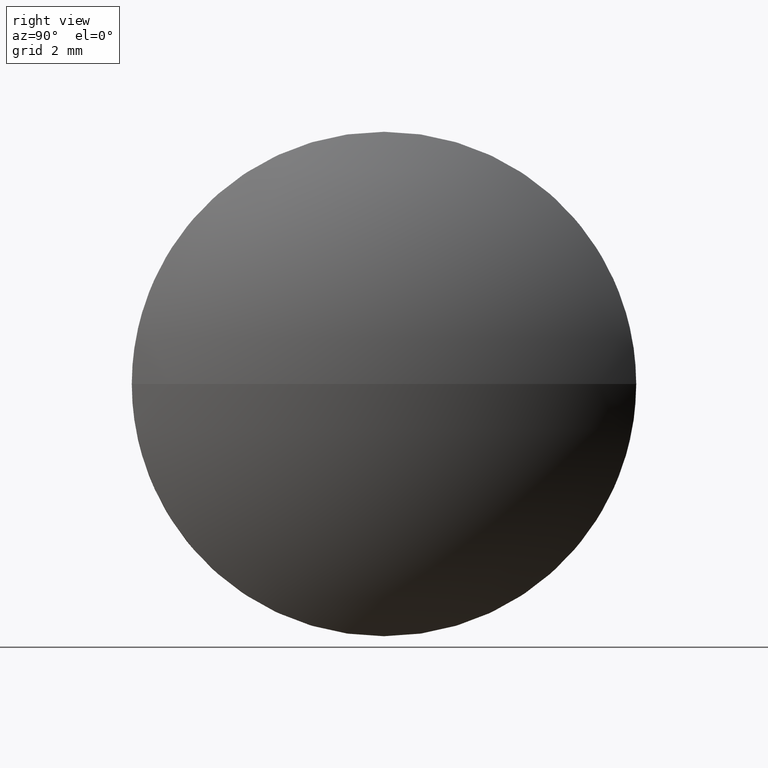
[diagram: clean part render]
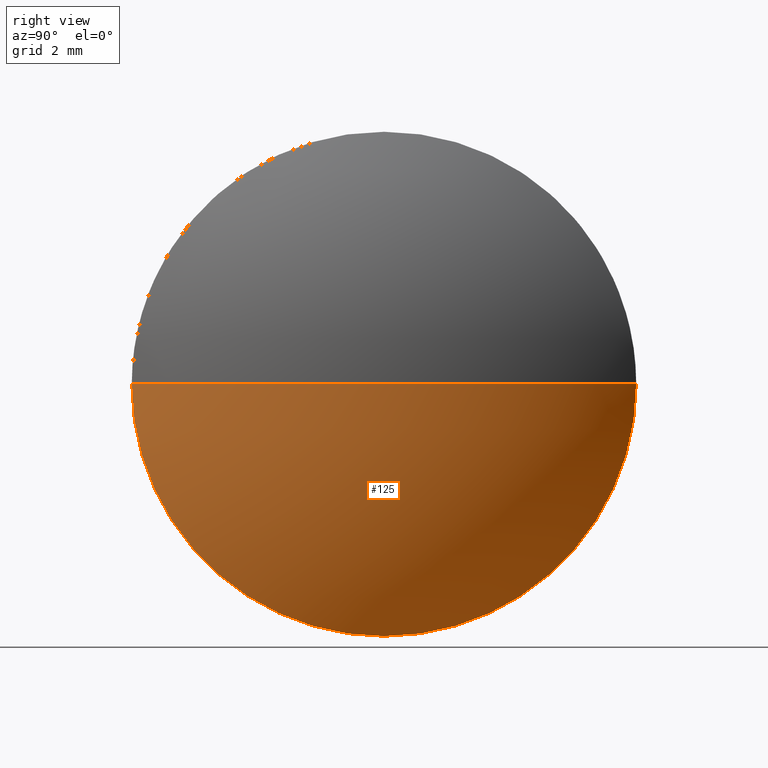
[diagram: same view with one face highlighted and labeled with its STEP entity id]
A machine part, right view. The second image highlights one B-rep face of the part: STEP entity #125.
In plain terms, the highlighted spherical surface has radius 8.2805 mm.
Its self-contained STEP definition (entity closure, byte-faithful):
#19 = SPHERICAL_SURFACE ( 'NONE', #164, 8.280476190476205600 ) ;
#21 = CARTESIAN_POINT ( 'NONE',  ( 526.2056482525305200, 17.05461516330817800, 0.0000000000000000000 ) ) ;
#22 = ORIENTED_EDGE ( 'NONE', *, *, #166, .F. ) ;
#25 = DIRECTION ( 'NONE',  ( 0.0000000000000000000, 0.0000000000000000000, 1.000000000000000000 ) ) ;
#31 = FACE_OUTER_BOUND ( 'NONE', #134, .T. ) ;
#35 = EDGE_CURVE ( 'NONE', #83, #120, #70, .T. ) ;
#40 = CARTESIAN_POINT ( 'NONE',  ( 524.5256482525305700, 17.05461516330814200, 0.0000000000000000000 ) ) ;
#42 = ORIENTED_EDGE ( 'NONE', *, *, #59, .T. ) ;
#45 = CARTESIAN_POINT ( 'NONE',  ( 524.5256482525305700, 22.05461516330816000, 6.123233995736740600E-016 ) ) ;
#46 = AXIS2_PLACEMENT_3D ( 'NONE', #74, #175, #111 ) ;
#53 = CARTESIAN_POINT ( 'NONE',  ( 517.9251720620543400, 17.05461516330817800, 0.0000000000000000000 ) ) ;
#55 = CARTESIAN_POINT ( 'NONE',  ( 524.5256482525305700, 17.05461516330814200, -4.999999999999997300 ) ) ;
#59 = EDGE_CURVE ( 'NONE', #83, #183, #97, .T. ) ;
#61 = CIRCLE ( 'NONE', #139, 4.999999999999997300 ) ;
#64 = DIRECTION ( 'NONE',  ( 0.0000000000000000000, 0.0000000000000000000, -1.000000000000000000 ) ) ;
#65 = DIRECTION ( 'NONE',  ( 0.0000000000000000000, 0.0000000000000000000, 1.000000000000000000 ) ) ;
#69 = EDGE_CURVE ( 'NONE', #93, #183, #61, .T. ) ;
#70 = CIRCLE ( 'NONE', #46, 8.280476190476205600 ) ;
#74 = CARTESIAN_POINT ( 'NONE',  ( 517.9251720620543400, 17.05461516330817800, 0.0000000000000000000 ) ) ;
#79 = ORIENTED_EDGE ( 'NONE', *, *, #35, .F. ) ;
#83 = VERTEX_POINT ( 'NONE', #21 ) ;
#88 = DIRECTION ( 'NONE',  ( -1.000000000000000000, -0.0000000000000000000, -0.0000000000000000000 ) ) ;
#91 = AXIS2_PLACEMENT_3D ( 'NONE', #184, #88, #65 ) ;
#93 = VERTEX_POINT ( 'NONE', #55 ) ;
#97 = CIRCLE ( 'NONE', #135, 8.280476190476227000 ) ;
#111 = DIRECTION ( 'NONE',  ( 0.0000000000000000000, -1.000000000000000000, -1.224646799147353500E-016 ) ) ;
#119 = CARTESIAN_POINT ( 'NONE',  ( 517.9251720620543400, 17.05461516330817800, 0.0000000000000000000 ) ) ;
#120 = VERTEX_POINT ( 'NONE', #45 ) ;
#122 = CIRCLE ( 'NONE', #91, 4.999999999999997300 ) ;
#125 = ADVANCED_FACE ( 'NONE', ( #31 ), #19, .T. ) ;
#126 = ORIENTED_EDGE ( 'NONE', *, *, #69, .F. ) ;
#134 = EDGE_LOOP ( 'NONE', ( #79, #42, #126, #22 ) ) ;
#135 = AXIS2_PLACEMENT_3D ( 'NONE', #53, #64, #176 ) ;
#139 = AXIS2_PLACEMENT_3D ( 'NONE', #40, #147, #25 ) ;
#147 = DIRECTION ( 'NONE',  ( -1.000000000000000000, -0.0000000000000000000, -0.0000000000000000000 ) ) ;
#148 = DIRECTION ( 'NONE',  ( 0.0000000000000000000, -1.000000000000000000, 0.0000000000000000000 ) ) ;
#149 = CARTESIAN_POINT ( 'NONE',  ( 524.5256482525305700, 12.05461516330816400, 0.0000000000000000000 ) ) ;
#164 = AXIS2_PLACEMENT_3D ( 'NONE', #119, #178, #148 ) ;
#166 = EDGE_CURVE ( 'NONE', #120, #93, #122, .T. ) ;
#175 = DIRECTION ( 'NONE',  ( 0.0000000000000000000, -1.224646799147353200E-016, 1.000000000000000000 ) ) ;
#176 = DIRECTION ( 'NONE',  ( -1.000000000000000000, 0.0000000000000000000, 0.0000000000000000000 ) ) ;
#178 = DIRECTION ( 'NONE',  ( 0.0000000000000000000, 0.0000000000000000000, 1.000000000000000000 ) ) ;
#183 = VERTEX_POINT ( 'NONE', #149 ) ;
#184 = CARTESIAN_POINT ( 'NONE',  ( 524.5256482525305700, 17.05461516330814200, 0.0000000000000000000 ) ) ;